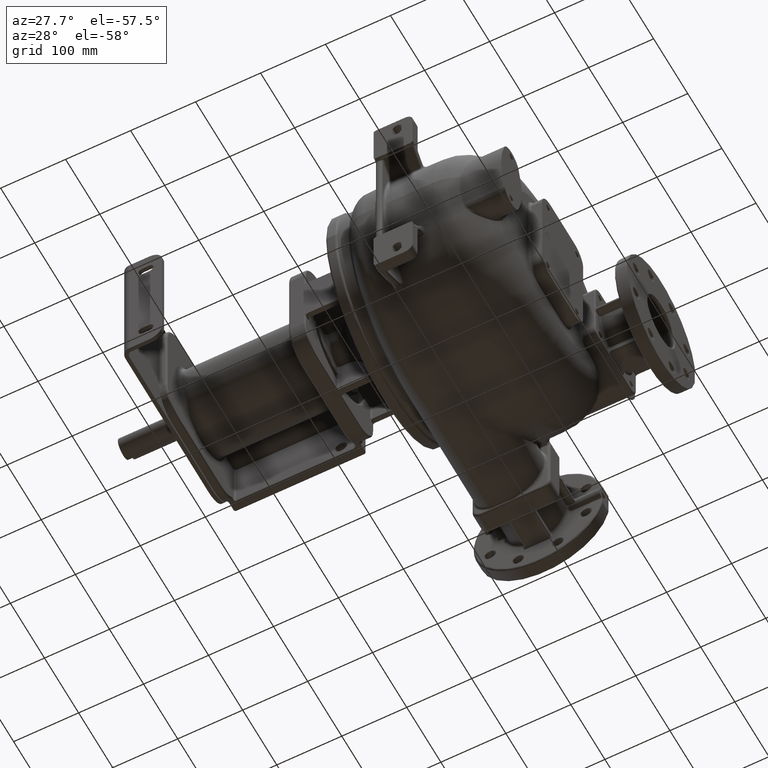
[diagram: clean part render]
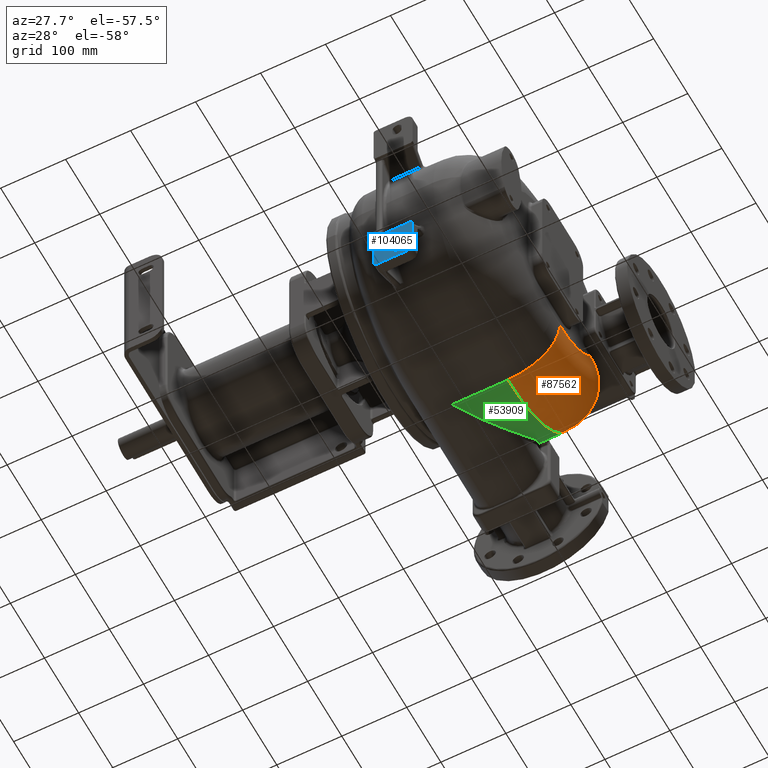
[diagram: same view with three faces highlighted in distinct colors, each labeled with its STEP entity id]
A machine part, auxiliary view with three faces highlighted in distinct colors.
Their STEP definitions:

[orange] entity #87562 — the highlighted toroidal blend (fillet) surface has major radius 109 mm and minor (blend) radius 80 mm.
#5505=CARTESIAN_POINT('',(5.E1,2.3E2,-1.4E1));
#5506=DIRECTION('',(1.E0,0.E0,0.E0));
#5507=DIRECTION('',(0.E0,0.E0,-1.E0));
#5508=AXIS2_PLACEMENT_3D('',#5505,#5506,#5507);
#6310=CARTESIAN_POINT('',(1.040329529372E2,3.857771678593E2,-7.689562539190E1));
#6311=CARTESIAN_POINT('',(1.035905255730E2,3.861629097738E2,-7.702252964153E1));
#6312=CARTESIAN_POINT('',(1.026966032979E2,3.869251180706E2,-7.727293137888E1));
#6313=CARTESIAN_POINT('',(1.013290008168E2,3.880395520785E2,-7.763815701372E1));
#6314=CARTESIAN_POINT('',(9.993548480350E1,3.891246390790E2,-7.799301578857E1));
#6315=CARTESIAN_POINT('',(9.851674581328E1,3.901797362281E2,-7.833743663755E1));
#6316=CARTESIAN_POINT('',(9.707352182037E1,3.912042727772E2,-7.867136608777E1));
#6317=CARTESIAN_POINT('',(9.560655704737E1,3.921977128574E2,-7.899466526427E1));
#6318=CARTESIAN_POINT('',(9.411661777709E1,3.931597080435E2,-7.930677358245E1));
#6319=CARTESIAN_POINT('',(9.260447693449E1,3.940896586359E2,-7.960781280416E1));
#6320=CARTESIAN_POINT('',(9.107095641192E1,3.949870284471E2,-7.989773840253E1));
#6321=CARTESIAN_POINT('',(8.951688922757E1,3.958512970011E2,-8.017652988257E1));
#6322=CARTESIAN_POINT('',(8.794311517104E1,3.966819836941E2,-8.044413888042E1));
#6323=CARTESIAN_POINT('',(8.635034532885E1,3.974787022803E2,-8.070053295662E1));
#6324=CARTESIAN_POINT('',(8.473930829245E1,3.982410942280E2,-8.094561831221E1));
#6325=CARTESIAN_POINT('',(8.311072387359E1,3.989689572797E2,-8.117895281068E1));
#6326=CARTESIAN_POINT('',(8.146547745084E1,3.996617998899E2,-8.140066000956E1));
#6327=CARTESIAN_POINT('',(7.980451064137E1,4.003191950396E2,-8.161072039727E1));
#6328=CARTESIAN_POINT('',(7.812879717809E1,4.009407345350E2,-8.180912549348E1));
#6329=CARTESIAN_POINT('',(7.643918740886E1,4.015261007076E2,-8.199585378349E1));
#6330=CARTESIAN_POINT('',(7.473637370088E1,4.020750535274E2,-8.217088093636E1));
#6331=CARTESIAN_POINT('',(7.302107089715E1,4.025873670927E2,-8.233414018710E1));
#6332=CARTESIAN_POINT('',(7.129402880647E1,4.030628955526E2,-8.248534871918E1));
#6333=CARTESIAN_POINT('',(6.955635214939E1,4.035012688608E2,-8.262457522326E1));
#6334=CARTESIAN_POINT('',(6.780911822094E1,4.039022038004E2,-8.275180703913E1));
#6335=CARTESIAN_POINT('',(6.605345997964E1,4.042654482518E2,-8.286703322837E1));
#6336=CARTESIAN_POINT('',(6.429012023091E1,4.045908733383E2,-8.297024425396E1));
#6337=CARTESIAN_POINT('',(6.251979008120E1,4.048783705678E2,-8.306141284242E1));
#6338=CARTESIAN_POINT('',(6.074314526226E1,4.051278534395E2,-8.314046579985E1));
#6339=CARTESIAN_POINT('',(5.896099944091E1,4.053392479822E2,-8.320725475499E1));
#6340=CARTESIAN_POINT('',(5.717428080935E1,4.055123736474E2,-8.326190977360E1));
#6341=CARTESIAN_POINT('',(5.538389974918E1,4.056471154517E2,-8.330446709496E1));
#6342=CARTESIAN_POINT('',(5.359077787846E1,4.057433821578E2,-8.333493904919E1));
#6343=CARTESIAN_POINT('',(5.179583513734E1,4.058011495999E2,-8.335330030698E1));
#6344=CARTESIAN_POINT('',(5.059861126164E1,4.058139376033E2,-8.335741470906E1));
#6345=CARTESIAN_POINT('',(4.999999999929E1,4.058139469125E2,-8.335743218243E1));
#25752=CARTESIAN_POINT('',(1.040329529372E2,3.857771678593E2,
-7.689562539190E1));
#25753=CARTESIAN_POINT('',(1.044497564811E2,3.853636401138E2,
-7.690018190896E1));
#25754=CARTESIAN_POINT('',(1.052757509847E2,3.845261068172E2,
-7.690951338989E1));
#25755=CARTESIAN_POINT('',(1.064910324612E2,3.832385447943E2,
-7.692396759785E1));
#25756=CARTESIAN_POINT('',(1.076821024555E2,3.819201210959E2,
-7.693898228250E1));
#25757=CARTESIAN_POINT('',(1.088483441914E2,3.805711152785E2,
-7.695454911435E1));
#25758=CARTESIAN_POINT('',(1.099891565011E2,3.791918680806E2,
-7.697070617126E1));
#25759=CARTESIAN_POINT('',(1.111040331009E2,3.777826036032E2,
-7.698746576296E1));
#25760=CARTESIAN_POINT('',(1.121924813618E2,3.763435285453E2,
-7.700483893523E1));
#25761=CARTESIAN_POINT('',(1.132539887308E2,3.748748643930E2,
-7.702284401424E1));
#25762=CARTESIAN_POINT('',(1.142880238298E2,3.733768536380E2,
-7.704150805566E1));
#25763=CARTESIAN_POINT('',(1.152940971209E2,3.718496789748E2,
-7.706084830235E1));
#25764=CARTESIAN_POINT('',(1.162717189407E2,3.702935106711E2,-7.708088119E1));
#25765=CARTESIAN_POINT('',(1.172203813697E2,3.687085313729E2,
-7.710163158275E1));
#25766=CARTESIAN_POINT('',(1.181395535276E2,3.670949511448E2,
-7.712313443207E1));
#25767=CARTESIAN_POINT('',(1.190287603280E2,3.654528768229E2,
-7.714541390622E1));
#25768=CARTESIAN_POINT('',(1.198875241580E2,3.637823932881E2,
-7.716849188171E1));
#25769=CARTESIAN_POINT('',(1.207153426772E2,3.620836007957E2,
-7.719239894183E1));
#25770=CARTESIAN_POINT('',(1.215116834853E2,3.603566403084E2,
-7.721717472355E1));
#25771=CARTESIAN_POINT('',(1.222761233418E2,3.586013869958E2,
-7.724285105482E1));
#25772=CARTESIAN_POINT('',(1.230082177711E2,3.568176824953E2,
-7.726946161117E1));
#25773=CARTESIAN_POINT('',(1.237074794376E2,3.550053914499E2,
-7.729704859942E1));
#25774=CARTESIAN_POINT('',(1.243733829103E2,3.531643980811E2,
-7.732566230956E1));
#25775=CARTESIAN_POINT('',(1.250053240716E2,3.512947653006E2,
-7.735533695354E1));
#25776=CARTESIAN_POINT('',(1.256027069117E2,3.493964974026E2,
-7.738611431104E1));
#25777=CARTESIAN_POINT('',(1.261648406059E2,3.474699156658E2,
-7.741803988101E1));
#25778=CARTESIAN_POINT('',(1.266914067986E2,3.455140180195E2,
-7.745118185444E1));
#25779=CARTESIAN_POINT('',(1.271822842012E2,3.435265180411E2,
-7.748562532301E1));
#25780=CARTESIAN_POINT('',(1.276371172224E2,3.415052858612E2,
-7.752146547419E1));
#25781=CARTESIAN_POINT('',(1.280552649102E2,3.394485641274E2,
-7.755880392102E1));
#25782=CARTESIAN_POINT('',(1.284348661626E2,3.373609240115E2,
-7.759761727956E1));
#25783=CARTESIAN_POINT('',(1.287745129862E2,3.352468906401E2,
-7.763787939658E1));
#25784=CARTESIAN_POINT('',(1.290732164752E2,3.331105052080E2,
-7.767957443288E1));
#25785=CARTESIAN_POINT('',(1.293298460166E2,3.309601446619E2,
-7.772259006534E1));
#25786=CARTESIAN_POINT('',(1.295438252211E2,3.288058460263E2,
-7.776675770022E1));
#25787=CARTESIAN_POINT('',(1.297153525803E2,3.266575668525E2,
-7.781189350592E1));
#25788=CARTESIAN_POINT('',(1.298454336841E2,3.245243597070E2,
-7.785781662845E1));
#25789=CARTESIAN_POINT('',(1.299359389798E2,3.224074162517E2,
-7.790449220049E1));
#25790=CARTESIAN_POINT('',(1.299887067979E2,3.203084235103E2,
-7.795187214850E1));
#25791=CARTESIAN_POINT('',(1.299999994033E2,3.189223471477E2,
-7.798388854589E1));
#25792=CARTESIAN_POINT('',(1.3E2,3.182326470208E2,-7.8E1));
#25794=CARTESIAN_POINT('',(5.E1,2.3E2,-1.23E2));
#25795=DIRECTION('',(0.E0,1.E0,0.E0));
#25796=DIRECTION('',(1.E0,0.E0,0.E0));
#25797=AXIS2_PLACEMENT_3D('',#25794,#25795,#25796);
#25808=CARTESIAN_POINT('',(1.3E2,2.3E2,-1.4E1));
#25809=DIRECTION('',(1.E0,0.E0,0.E0));
#25810=DIRECTION('',(0.E0,0.E0,-1.E0));
#25811=AXIS2_PLACEMENT_3D('',#25808,#25809,#25810);
#43931=CARTESIAN_POINT('',(1.3E2,2.3E2,-1.23E2));
#43933=VERTEX_POINT('',#43931);
#43935=CARTESIAN_POINT('',(5.E1,2.3E2,-2.03E2));
#43937=VERTEX_POINT('',#43935);
#43950=CARTESIAN_POINT('',(5.E1,4.058139534884E2,-8.335743477659E1));
#43951=VERTEX_POINT('',#43950);
#44004=CARTESIAN_POINT('',(1.3E2,3.182326470208E2,-7.8E1));
#44006=VERTEX_POINT('',#44004);
#44025=VERTEX_POINT('',#25752);
#87548=CARTESIAN_POINT('',(5.E1,2.3E2,-1.4E1));
#87549=DIRECTION('',(1.E0,0.E0,0.E0));
#87550=DIRECTION('',(0.E0,-4.013646275206E-3,-9.999919452893E-1));
#87551=AXIS2_PLACEMENT_3D('',#87548,#87549,#87550);
#87552=TOROIDAL_SURFACE('',#87551,1.09E2,8.E1);
#87553=ORIENTED_EDGE('',*,*,#87542,.F.);
#87554=ORIENTED_EDGE('',*,*,#54585,.T.);
#87555=ORIENTED_EDGE('',*,*,#53900,.F.);
#87557=ORIENTED_EDGE('',*,*,#87556,.F.);
#87559=ORIENTED_EDGE('',*,*,#87558,.T.);
#87560=EDGE_LOOP('',(#87553,#87554,#87555,#87557,#87559));
#87561=FACE_OUTER_BOUND('',#87560,.F.);
#87562=ADVANCED_FACE('',(#87561),#87552,.T.);
#5509=CIRCLE('',#5508,1.89E2);
#6346=B_SPLINE_CURVE_WITH_KNOTS('',3,(#6310,#6311,#6312,#6313,#6314,#6315,#6316,
#6317,#6318,#6319,#6320,#6321,#6322,#6323,#6324,#6325,#6326,#6327,#6328,#6329,
#6330,#6331,#6332,#6333,#6334,#6335,#6336,#6337,#6338,#6339,#6340,#6341,#6342,
#6343,#6344,#6345),.UNSPECIFIED.,.F.,.F.,(4,1,1,1,1,1,1,1,1,1,1,1,1,1,1,1,1,1,1,
1,1,1,1,1,1,1,1,1,1,1,1,1,1,4),(0.E0,3.030303030303E-2,6.060606060606E-2,
9.090909090909E-2,1.212121212121E-1,1.515151515152E-1,1.818181818182E-1,
2.121212121212E-1,2.424242424242E-1,2.727272727273E-1,3.030303030303E-1,
3.333333333333E-1,3.636363636364E-1,3.939393939394E-1,4.242424242424E-1,
4.545454545455E-1,4.848484848485E-1,5.151515151515E-1,5.454545454545E-1,
5.757575757576E-1,6.060606060606E-1,6.363636363636E-1,6.666666666667E-1,
6.969696969697E-1,7.272727272727E-1,7.575757575758E-1,7.878787878788E-1,
8.181818181818E-1,8.484848484848E-1,8.787878787879E-1,9.090909090909E-1,
9.393939393939E-1,9.696969696970E-1,1.E0),.UNSPECIFIED.);
#25793=B_SPLINE_CURVE_WITH_KNOTS('',3,(#25752,#25753,#25754,#25755,#25756,
#25757,#25758,#25759,#25760,#25761,#25762,#25763,#25764,#25765,#25766,#25767,
#25768,#25769,#25770,#25771,#25772,#25773,#25774,#25775,#25776,#25777,#25778,
#25779,#25780,#25781,#25782,#25783,#25784,#25785,#25786,#25787,#25788,#25789,
#25790,#25791,#25792),.UNSPECIFIED.,.F.,.F.,(4,1,1,1,1,1,1,1,1,1,1,1,1,1,1,1,1,
1,1,1,1,1,1,1,1,1,1,1,1,1,1,1,1,1,1,1,1,1,4),(0.E0,2.631578947368E-2,
5.263157894737E-2,7.894736842105E-2,1.052631578947E-1,1.315789473684E-1,
1.578947368421E-1,1.842105263158E-1,2.105263157895E-1,2.368421052632E-1,
2.631578947368E-1,2.894736842105E-1,3.157894736842E-1,3.421052631579E-1,
3.684210526316E-1,3.947368421053E-1,4.210526315789E-1,4.473684210526E-1,
4.736842105263E-1,5.E-1,5.263157894737E-1,5.526315789474E-1,5.789473684211E-1,
6.052631578947E-1,6.315789473684E-1,6.578947368421E-1,6.842105263158E-1,
7.105263157895E-1,7.368421052632E-1,7.631578947368E-1,7.894736842105E-1,
8.157894736842E-1,8.421052631579E-1,8.684210526316E-1,8.947368421053E-1,
9.210526315789E-1,9.473684210526E-1,9.736842105263E-1,1.E0),.UNSPECIFIED.);
#25798=CIRCLE('',#25797,8.E1);
#25812=CIRCLE('',#25811,1.09E2);
#53900=EDGE_CURVE('',#43937,#43951,#5509,.T.);
#54585=EDGE_CURVE('',#44025,#43951,#6346,.T.);
#87542=EDGE_CURVE('',#44025,#44006,#25793,.T.);
#87556=EDGE_CURVE('',#43933,#43937,#25798,.T.);
#87558=EDGE_CURVE('',#43933,#44006,#25812,.T.);

[blue] entity #104065 — the highlighted planar face has unit normal (0, 1, 0).
#38571=DIRECTION('',(0.E0,0.E0,-1.E0));
#38572=VECTOR('',#38571,5.4E1);
#38573=CARTESIAN_POINT('',(2.4E1,0.E0,-1.04E2));
#38574=LINE('',#38573,#38572);
#38606=DIRECTION('',(9.999999999999E-1,-2.362841495658E-7,-4.448935195100E-7));
#38607=VECTOR('',#38606,4.999819207330E1);
#38608=CARTESIAN_POINT('',(-2.999819207329E1,1.181378029387E-5,
-9.999997775613E1));
#38609=LINE('',#38608,#38607);
#38683=DIRECTION('',(-9.999999999208E-1,-5.901555351495E-6,-1.111189107711E-5));
#38684=VECTOR('',#38683,2.001807926865E0);
#38685=CARTESIAN_POINT('',(-2.999819207329E1,1.181378029387E-5,
-9.999997775613E1));
#38686=LINE('',#38685,#38684);
#38697=CARTESIAN_POINT('',(-3.2E1,0.E0,-1.04E2));
#38698=DIRECTION('',(0.E0,1.E0,0.E0));
#38699=DIRECTION('',(-1.E0,0.E0,0.E0));
#38700=AXIS2_PLACEMENT_3D('',#38697,#38698,#38699);
#38707=DIRECTION('',(0.E0,0.E0,1.E0));
#38708=VECTOR('',#38707,6.2E1);
#38709=CARTESIAN_POINT('',(-3.6E1,0.E0,-1.66E2));
#38710=LINE('',#38709,#38708);
#38733=CARTESIAN_POINT('',(-3.2E1,0.E0,-1.66E2));
#38734=DIRECTION('',(0.E0,-1.E0,0.E0));
#38735=DIRECTION('',(-1.E0,0.E0,0.E0));
#38736=AXIS2_PLACEMENT_3D('',#38733,#38734,#38735);
#38743=DIRECTION('',(-1.E0,0.E0,0.E0));
#38744=VECTOR('',#38743,4.4E1);
#38745=CARTESIAN_POINT('',(1.2E1,0.E0,-1.7E2));
#38746=LINE('',#38745,#38744);
#38759=CARTESIAN_POINT('',(1.2E1,0.E0,-1.58E2));
#38760=DIRECTION('',(0.E0,1.E0,0.E0));
#38761=DIRECTION('',(1.E0,0.E0,0.E0));
#38762=AXIS2_PLACEMENT_3D('',#38759,#38760,#38761);
#38982=CARTESIAN_POINT('',(0.E0,0.E0,-1.45E2));
#38983=DIRECTION('',(0.E0,-1.E0,0.E0));
#38984=DIRECTION('',(1.E0,0.E0,0.E0));
#38985=AXIS2_PLACEMENT_3D('',#38982,#38983,#38984);
#38991=DIRECTION('',(0.E0,0.E0,1.E0));
#38992=VECTOR('',#38991,7.5E0);
#38993=CARTESIAN_POINT('',(7.E0,0.E0,-1.525E2));
#38994=LINE('',#38993,#38992);
#38999=CARTESIAN_POINT('',(0.E0,0.E0,-1.525E2));
#39000=DIRECTION('',(0.E0,-1.E0,0.E0));
#39001=DIRECTION('',(-1.E0,0.E0,0.E0));
#39002=AXIS2_PLACEMENT_3D('',#38999,#39000,#39001);
#39008=DIRECTION('',(0.E0,0.E0,-1.E0));
#39009=VECTOR('',#39008,7.5E0);
#39010=CARTESIAN_POINT('',(-7.E0,0.E0,-1.45E2));
#39011=LINE('',#39010,#39009);
#39606=CARTESIAN_POINT('',(2.E1,0.E0,-1.04E2));
#39607=DIRECTION('',(0.E0,-1.E0,0.E0));
#39608=DIRECTION('',(1.E0,0.E0,0.E0));
#39609=AXIS2_PLACEMENT_3D('',#39606,#39607,#39608);
#45241=CARTESIAN_POINT('',(-2.999819207329E1,1.181378029387E-5,
-9.999997775613E1));
#45242=CARTESIAN_POINT('',(2.E1,0.E0,-1.E2));
#45243=VERTEX_POINT('',#45241);
#45244=VERTEX_POINT('',#45242);
#45249=CARTESIAN_POINT('',(2.4E1,0.E0,-1.04E2));
#45250=CARTESIAN_POINT('',(2.4E1,0.E0,-1.58E2));
#45251=VERTEX_POINT('',#45249);
#45252=VERTEX_POINT('',#45250);
#45253=CARTESIAN_POINT('',(1.2E1,0.E0,-1.7E2));
#45254=VERTEX_POINT('',#45253);
#45255=CARTESIAN_POINT('',(-3.2E1,0.E0,-1.7E2));
#45256=VERTEX_POINT('',#45255);
#45257=CARTESIAN_POINT('',(-3.6E1,0.E0,-1.66E2));
#45258=CARTESIAN_POINT('',(-3.6E1,0.E0,-1.04E2));
#45259=VERTEX_POINT('',#45257);
#45260=VERTEX_POINT('',#45258);
#45273=CARTESIAN_POINT('',(-3.2E1,1.041434631946E-14,-1.E2));
#45274=VERTEX_POINT('',#45273);
#45277=CARTESIAN_POINT('',(7.E0,0.E0,-1.45E2));
#45278=CARTESIAN_POINT('',(-7.E0,0.E0,-1.45E2));
#45279=VERTEX_POINT('',#45277);
#45280=VERTEX_POINT('',#45278);
#45281=CARTESIAN_POINT('',(-7.E0,0.E0,-1.525E2));
#45282=VERTEX_POINT('',#45281);
#45283=CARTESIAN_POINT('',(7.E0,0.E0,-1.525E2));
#45284=VERTEX_POINT('',#45283);
#104031=CARTESIAN_POINT('',(-1.1E2,0.E0,2.5E2));
#104032=DIRECTION('',(0.E0,1.E0,0.E0));
#104033=DIRECTION('',(1.E0,0.E0,0.E0));
#104034=AXIS2_PLACEMENT_3D('',#104031,#104032,#104033);
#104035=PLANE('',#104034);
#104037=ORIENTED_EDGE('',*,*,#104036,.T.);
#104039=ORIENTED_EDGE('',*,*,#104038,.F.);
#104040=ORIENTED_EDGE('',*,*,#104012,.T.);
#104042=ORIENTED_EDGE('',*,*,#104041,.T.);
#104044=ORIENTED_EDGE('',*,*,#104043,.T.);
#104046=ORIENTED_EDGE('',*,*,#104045,.F.);
#104048=ORIENTED_EDGE('',*,*,#104047,.T.);
#104050=ORIENTED_EDGE('',*,*,#104049,.T.);
#104052=ORIENTED_EDGE('',*,*,#104051,.F.);
#104053=EDGE_LOOP('',(#104037,#104039,#104040,#104042,#104044,#104046,#104048,
#104050,#104052));
#104054=FACE_OUTER_BOUND('',#104053,.F.);
#104056=ORIENTED_EDGE('',*,*,#104055,.T.);
#104058=ORIENTED_EDGE('',*,*,#104057,.T.);
#104060=ORIENTED_EDGE('',*,*,#104059,.T.);
#104062=ORIENTED_EDGE('',*,*,#104061,.T.);
#104063=EDGE_LOOP('',(#104056,#104058,#104060,#104062));
#104064=FACE_BOUND('',#104063,.F.);
#104065=ADVANCED_FACE('',(#104054,#104064),#104035,.F.);
#38701=CIRCLE('',#38700,4.E0);
#38737=CIRCLE('',#38736,4.E0);
#38763=CIRCLE('',#38762,1.2E1);
#38986=CIRCLE('',#38985,7.E0);
#39003=CIRCLE('',#39002,7.E0);
#39610=CIRCLE('',#39609,4.E0);
#104012=EDGE_CURVE('',#45251,#45252,#38574,.T.);
#104036=EDGE_CURVE('',#45243,#45244,#38609,.T.);
#104038=EDGE_CURVE('',#45251,#45244,#39610,.T.);
#104041=EDGE_CURVE('',#45252,#45254,#38763,.T.);
#104043=EDGE_CURVE('',#45254,#45256,#38746,.T.);
#104045=EDGE_CURVE('',#45259,#45256,#38737,.T.);
#104047=EDGE_CURVE('',#45259,#45260,#38710,.T.);
#104049=EDGE_CURVE('',#45260,#45274,#38701,.T.);
#104051=EDGE_CURVE('',#45243,#45274,#38686,.T.);
#104055=EDGE_CURVE('',#45279,#45280,#38986,.T.);
#104057=EDGE_CURVE('',#45280,#45282,#39011,.T.);
#104059=EDGE_CURVE('',#45282,#45284,#39003,.T.);
#104061=EDGE_CURVE('',#45284,#45279,#38994,.T.);

[green] entity #53909 — the highlighted cylindrical surface (partial cylindrical patch) has radius 189 mm, axis along (1, 0, 0).
#5310=CARTESIAN_POINT('',(2.463358836089E1,4.023523316063E2,-9.156077481490E1));
#5311=CARTESIAN_POINT('',(2.451900613920E1,4.024254354048E2,-9.139832762232E1));
#5312=CARTESIAN_POINT('',(2.428484579216E1,4.025692823296E2,-9.107744875619E1));
#5313=CARTESIAN_POINT('',(2.391862181820E1,4.027782351233E2,-9.060787916290E1));
#5314=CARTESIAN_POINT('',(2.353810834694E1,4.029801866935E2,-9.015074426394E1));
#5315=CARTESIAN_POINT('',(2.314379834069E1,4.031750846634E2,-8.970644697841E1));
#5316=CARTESIAN_POINT('',(2.273622281356E1,4.033628533588E2,-8.927544323670E1));
#5317=CARTESIAN_POINT('',(2.231588956591E1,4.035434287656E2,-8.885816497368E1));
#5318=CARTESIAN_POINT('',(2.188329261444E1,4.037167699719E2,-8.845499117279E1));
#5319=CARTESIAN_POINT('',(2.143884139083E1,4.038829333905E2,-8.806607082641E1));
#5320=CARTESIAN_POINT('',(2.098291035148E1,4.040419616646E2,-8.769157735303E1));
#5321=CARTESIAN_POINT('',(2.051586720505E1,4.041938853290E2,-8.733170562711E1));
#5322=CARTESIAN_POINT('',(2.003813707458E1,4.043387064167E2,-8.698671142521E1));
#5323=CARTESIAN_POINT('',(1.955009276688E1,4.044764290214E2,-8.665683939964E1));
#5324=CARTESIAN_POINT('',(1.905218926008E1,4.046070539119E2,-8.634233513736E1));
#5325=CARTESIAN_POINT('',(1.854502178620E1,4.047305771978E2,-8.604344799600E1));
#5326=CARTESIAN_POINT('',(1.802915090281E1,4.048469931862E2,-8.576042372612E1));
#5327=CARTESIAN_POINT('',(1.750510684136E1,4.049563003937E2,-8.549348916525E1));
#5328=CARTESIAN_POINT('',(1.697335825507E1,4.050585046343E2,-8.524284365515E1));
#5329=CARTESIAN_POINT('',(1.643435287860E1,4.051536023007E2,-8.500869929382E1));
#5330=CARTESIAN_POINT('',(1.588857979121E1,4.052415948108E2,-8.479124504763E1));
#5331=CARTESIAN_POINT('',(1.533665212630E1,4.053224970868E2,-8.459062472602E1));
#5332=CARTESIAN_POINT('',(1.477915526412E1,4.053963178493E2,-8.440698496774E1));
#5333=CARTESIAN_POINT('',(1.421666365367E1,4.054630661348E2,-8.424045879349E1));
#5334=CARTESIAN_POINT('',(1.364948497898E1,4.055227721676E2,-8.409111274164E1));
#5335=CARTESIAN_POINT('',(1.307793309436E1,4.055754496804E2,-8.395904037815E1));
#5336=CARTESIAN_POINT('',(1.250225373172E1,4.056210936187E2,-8.384436834433E1));
#5337=CARTESIAN_POINT('',(1.192307562814E1,4.056597107231E2,-8.374717933704E1));
#5338=CARTESIAN_POINT('',(1.134113437779E1,4.056913092194E2,-8.366753751220E1));
#5339=CARTESIAN_POINT('',(1.075713025052E1,4.057158927306E2,-8.360550341786E1));
#5340=CARTESIAN_POINT('',(1.017179420538E1,4.057334622808E2,-8.356112944753E1));
#5341=CARTESIAN_POINT('',(9.585759500351E0,4.057440149052E2,-8.353446066435E1));
#5342=CARTESIAN_POINT('',(9.195258106388E0,4.057463697341E2,-8.352851038200E1));
#5343=CARTESIAN_POINT('',(8.999999997960E0,4.057463742101E2,-8.352849740931E1));
#5345=CARTESIAN_POINT('',(2.601958005698E1,3.971923204193E2,-1.021347150265E2));
#5346=CARTESIAN_POINT('',(2.606886979403E1,3.972474741209E2,-1.020300895109E2));
#5347=CARTESIAN_POINT('',(2.616364086479E1,3.973589197265E2,-1.018181982147E2));
#5348=CARTESIAN_POINT('',(2.629428795808E1,3.975296341702E2,-1.014921019748E2));
#5349=CARTESIAN_POINT('',(2.641289725865E1,3.977034943397E2,-1.011583969630E2));
#5350=CARTESIAN_POINT('',(2.651907424949E1,3.978802267862E2,-1.008175070949E2));
#5351=CARTESIAN_POINT('',(2.661240292575E1,3.980595064730E2,-1.004699608806E2));
#5352=CARTESIAN_POINT('',(2.669249670142E1,3.982410157860E2,-1.001162823018E2));
#5353=CARTESIAN_POINT('',(2.675895592893E1,3.984243918267E2,-9.975709403846E1));
#5354=CARTESIAN_POINT('',(2.681151033562E1,3.986094072922E2,-9.939276402112E1));
#5355=CARTESIAN_POINT('',(2.685000138385E1,3.987960029838E2,-9.902333325417E1));
#5356=CARTESIAN_POINT('',(2.687419959636E1,3.989840963665E2,-9.864888892945E1));
#5357=CARTESIAN_POINT('',(2.688383396553E1,3.991734906072E2,-9.826974883513E1));
#5358=CARTESIAN_POINT('',(2.687863360788E1,3.993638827915E2,-9.788645178013E1));
#5359=CARTESIAN_POINT('',(2.685834303846E1,3.995549683727E2,-9.749955227325E1));
#5360=CARTESIAN_POINT('',(2.682276731942E1,3.997465195389E2,-9.710946074709E1));
#5361=CARTESIAN_POINT('',(2.677172561874E1,3.999383384676E2,-9.671653517363E1));
#5362=CARTESIAN_POINT('',(2.670503048217E1,4.001302030062E2,-9.632119208901E1));
#5363=CARTESIAN_POINT('',(2.662250345162E1,4.003218711561E2,-9.592389914973E1));
#5364=CARTESIAN_POINT('',(2.652396754213E1,4.005130862999E2,-9.552516607631E1));
#5365=CARTESIAN_POINT('',(2.640928287892E1,4.007036615723E2,-9.512536825780E1));
#5366=CARTESIAN_POINT('',(2.627830648465E1,4.008934164132E2,-9.472487649031E1));
#5367=CARTESIAN_POINT('',(2.613091633354E1,4.010821276056E2,-9.432416148695E1));
#5368=CARTESIAN_POINT('',(2.596699565601E1,4.012695590551E2,-9.392373316072E1));
#5369=CARTESIAN_POINT('',(2.578649114582E1,4.014554604069E2,-9.352414457379E1));
#5370=CARTESIAN_POINT('',(2.558940076311E1,4.016395712640E2,-9.312598409463E1));
#5371=CARTESIAN_POINT('',(2.537574041129E1,4.018216297260E2,-9.272985738030E1));
#5372=CARTESIAN_POINT('',(2.514557682802E1,4.020013626975E2,-9.233640962485E1));
#5373=CARTESIAN_POINT('',(2.489900441110E1,4.021785377167E2,-9.194620993399E1));
#5374=CARTESIAN_POINT('',(2.472388872868E1,4.022947140914E2,-9.168881062468E1));
#5375=CARTESIAN_POINT('',(2.463358836089E1,4.023523316063E2,-9.156077481490E1));
#5377=CARTESIAN_POINT('',(1.999999504987E1,3.945181350074E2,-1.070310875658E2));
#5378=CARTESIAN_POINT('',(2.006028890176E1,3.945181439721E2,-1.070310675058E2));
#5379=CARTESIAN_POINT('',(2.018156428884E1,3.945194550523E2,-1.070287551815E2));
#5380=CARTESIAN_POINT('',(2.036568917776E1,3.945255470612E2,-1.070179786692E2));
#5381=CARTESIAN_POINT('',(2.055175908884E1,3.945359666616E2,-1.069995479349E2));
#5382=CARTESIAN_POINT('',(2.073956444080E1,3.945508738719E2,-1.069731698044E2));
#5383=CARTESIAN_POINT('',(2.092886294136E1,3.945703719937E2,-1.069386534953E2));
#5384=CARTESIAN_POINT('',(2.111944710706E1,3.945944839123E2,-1.068959462279E2));
#5385=CARTESIAN_POINT('',(2.131119751319E1,3.946233243717E2,-1.068448297745E2));
#5386=CARTESIAN_POINT('',(2.150389186921E1,3.946570076338E2,-1.067850830552E2));
#5387=CARTESIAN_POINT('',(2.169758978175E1,3.946956972767E2,-1.067163936717E2));
#5388=CARTESIAN_POINT('',(2.189333805756E1,3.947398145910E2,-1.066379865323E2));
#5389=CARTESIAN_POINT('',(2.209203047330E1,3.947898959154E2,-1.065488742472E2));
#5390=CARTESIAN_POINT('',(2.229364696331E1,3.948462098982E2,-1.064485370434E2));
#5391=CARTESIAN_POINT('',(2.249778311702E1,3.949089206229E2,-1.063366339345E2));
#5392=CARTESIAN_POINT('',(2.270412792842E1,3.949782653682E2,-1.062126854763E2));
#5393=CARTESIAN_POINT('',(2.291246597998E1,3.950546170943E2,-1.060759596307E2));
#5394=CARTESIAN_POINT('',(2.312248992310E1,3.951383860466E2,-1.059256453786E2));
#5395=CARTESIAN_POINT('',(2.333560166939E1,3.952304348197E2,-1.057601034468E2));
#5396=CARTESIAN_POINT('',(2.355287139702E1,3.953318156716E2,-1.055773263419E2));
#5397=CARTESIAN_POINT('',(2.377298092494E1,3.954426608594E2,-1.053769388872E2));
#5398=CARTESIAN_POINT('',(2.399411164552E1,3.955628701559E2,-1.051589733209E2));
#5399=CARTESIAN_POINT('',(2.421661707267E1,3.956931063791E2,-1.049220595533E2));
#5400=CARTESIAN_POINT('',(2.444068482447E1,3.958341440643E2,-1.046645895242E2));
#5401=CARTESIAN_POINT('',(2.466602635940E1,3.959867317700E2,-1.043849627395E2));
#5402=CARTESIAN_POINT('',(2.489216687904E1,3.961516052578E2,-1.040815579309E2));
#5403=CARTESIAN_POINT('',(2.511902085586E1,3.963296475204E2,-1.037524307688E2));
#5404=CARTESIAN_POINT('',(2.534609236453E1,3.965217073152E2,-1.033956382744E2));
#5405=CARTESIAN_POINT('',(2.557256319985E1,3.967285786313E2,-1.030092696169E2));
#5406=CARTESIAN_POINT('',(2.579760914391E1,3.969509594942E2,-1.025915220114E2));
#5407=CARTESIAN_POINT('',(2.594606499330E1,3.971100748863E2,-1.022907335674E2));
#5408=CARTESIAN_POINT('',(2.601958005698E1,3.971923204193E2,-1.021347150265E2));
#5410=DIRECTION('',(1.E0,2.088836814115E-8,3.693960324156E-8));
#5411=VECTOR('',#5410,1.399999504984E1);
#5412=CARTESIAN_POINT('',(6.000000000036E0,3.945181347150E2,-1.070310880829E2));
#5413=LINE('',#5412,#5411);
#5414=CARTESIAN_POINT('',(-3.599997426415E1,2.300000447976E2,
-2.029999999970E2));
#5415=CARTESIAN_POINT('',(-3.531985993402E1,2.312149486518E2,
-2.029999613669E2));
#5416=CARTESIAN_POINT('',(-3.396038786922E1,2.336434265843E2,
-2.029765968646E2));
#5417=CARTESIAN_POINT('',(-3.192407333775E1,2.372833556956E2,
-2.028712958338E2));
#5418=CARTESIAN_POINT('',(-2.989459122789E1,2.409158335099E2,
-2.026961741310E2));
#5419=CARTESIAN_POINT('',(-2.787500826186E1,2.445376994347E2,
-2.024516857256E2));
#5420=CARTESIAN_POINT('',(-2.586857377764E1,2.481453954200E2,
-2.021385214450E2));
#5421=CARTESIAN_POINT('',(-2.387842738285E1,2.517354869338E2,
-2.017575515488E2));
#5422=CARTESIAN_POINT('',(-2.190772558914E1,2.553046295642E2,
-2.013098267275E2));
#5423=CARTESIAN_POINT('',(-1.995954147334E1,2.588494839829E2,
-2.007965837157E2));
#5424=CARTESIAN_POINT('',(-1.803684357587E1,2.623667740978E2,
-2.002192365785E2));
#5425=CARTESIAN_POINT('',(-1.614251944602E1,2.658531469196E2,
-1.995794032862E2));
#5426=CARTESIAN_POINT('',(-1.427921619636E1,2.693057846196E2,
-1.988787868651E2));
#5427=CARTESIAN_POINT('',(-1.244937554682E1,2.727222306859E2,
-1.981191616696E2));
#5428=CARTESIAN_POINT('',(-1.065533021633E1,2.760999833703E2,
-1.973024463006E2));
#5429=CARTESIAN_POINT('',(-8.899255383161E0,2.794365670333E2,
-1.964306942300E2));
#5430=CARTESIAN_POINT('',(-7.183215891665E0,2.827296344842E2,
-1.955060663506E2));
#5431=CARTESIAN_POINT('',(-5.509194241279E0,2.859771810713E2,
-1.945307541434E2));
#5432=CARTESIAN_POINT('',(-3.879030915068E0,2.891771336574E2,
-1.935070835137E2));
#5433=CARTESIAN_POINT('',(-2.294517274147E0,2.923271840763E2,
-1.924375882087E2));
#5434=CARTESIAN_POINT('',(-7.571776533599E-1,2.954254003378E2,
-1.913248173538E2));
#5435=CARTESIAN_POINT('',(7.318770190356E-1,2.984709028592E2,
-1.901710306327E2));
#5436=CARTESIAN_POINT('',(2.171667866565E0,3.014627148363E2,-1.889785664827E2));
#5437=CARTESIAN_POINT('',(3.561427316837E0,3.043999274390E2,-1.877497918332E2));
#5438=CARTESIAN_POINT('',(4.900418338488E0,3.072817176337E2,-1.864870889483E2));
#5439=CARTESIAN_POINT('',(6.187895522021E0,3.101073784358E2,-1.851928371949E2));
#5440=CARTESIAN_POINT('',(7.423328763839E0,3.128762440911E2,-1.838694405926E2));
#5441=CARTESIAN_POINT('',(8.606371003121E0,3.155876413039E2,-1.825193551900E2));
#5442=CARTESIAN_POINT('',(9.736738577931E0,3.182413055766E2,-1.811448728624E2));
#5443=CARTESIAN_POINT('',(1.081428414134E1,3.208371494907E2,-1.797482075161E2));
#5444=CARTESIAN_POINT('',(1.183904980196E1,3.233750914784E2,-1.783315797588E2));
#5445=CARTESIAN_POINT('',(1.281119410777E1,3.258551487863E2,-1.768971662409E2));
#5446=CARTESIAN_POINT('',(1.373084882045E1,3.282775992834E2,-1.754469922138E2));
#5447=CARTESIAN_POINT('',(1.459831960554E1,3.306427535547E2,-1.739830501928E2));
#5448=CARTESIAN_POINT('',(1.541407694170E1,3.329509635158E2,-1.725072955087E2));
#5449=CARTESIAN_POINT('',(1.617853228151E1,3.352027332249E2,-1.710215693572E2));
#5450=CARTESIAN_POINT('',(1.689217755543E1,3.373986534023E2,-1.695276296444E2));
#5451=CARTESIAN_POINT('',(1.755567375627E1,3.395393551191E2,-1.680271774192E2));
#5452=CARTESIAN_POINT('',(1.816967304685E1,3.416255393433E2,-1.665218328782E2));
#5453=CARTESIAN_POINT('',(1.873480330551E1,3.436579842764E2,-1.650131237113E2));
#5454=CARTESIAN_POINT('',(1.925184544905E1,3.456375214746E2,-1.635024967271E2));
#5455=CARTESIAN_POINT('',(1.972160357580E1,3.475650163743E2,-1.619913287178E2));
#5456=CARTESIAN_POINT('',(2.014480251519E1,3.494413465103E2,-1.604809419424E2));
#5457=CARTESIAN_POINT('',(2.052228975977E1,3.512674543580E2,-1.589725593979E2));
#5458=CARTESIAN_POINT('',(2.085494323472E1,3.530443110417E2,-1.574673289380E2));
#5459=CARTESIAN_POINT('',(2.114355187022E1,3.547728659658E2,-1.559663656784E2));
#5460=CARTESIAN_POINT('',(2.138898959174E1,3.564541310600E2,-1.544706790431E2));
#5461=CARTESIAN_POINT('',(2.159216676827E1,3.580891514346E2,-1.529811919616E2));
#5462=CARTESIAN_POINT('',(2.175389412937E1,3.596788936508E2,-1.514988437086E2));
#5463=CARTESIAN_POINT('',(2.187502706442E1,3.612243770798E2,-1.500244724169E2));
#5464=CARTESIAN_POINT('',(2.195646319414E1,3.627266815756E2,-1.485587999873E2));
#5465=CARTESIAN_POINT('',(2.199903785105E1,3.641868193384E2,-1.471025548617E2));
#5466=CARTESIAN_POINT('',(2.200355666172E1,3.656057878887E2,-1.456564254797E2));
#5467=CARTESIAN_POINT('',(2.197084380969E1,3.669846346636E2,-1.442209933672E2));
#5468=CARTESIAN_POINT('',(2.190172301620E1,3.683244486578E2,-1.427967346565E2));
#5469=CARTESIAN_POINT('',(2.179696035313E1,3.696261883747E2,-1.413842045599E2));
#5470=CARTESIAN_POINT('',(2.165730273746E1,3.708908365743E2,-1.399838790055E2));
#5471=CARTESIAN_POINT('',(2.148347984087E1,3.721194123881E2,-1.385961371827E2));
#5472=CARTESIAN_POINT('',(2.127618635715E1,3.733129894191E2,-1.372212332817E2));
#5473=CARTESIAN_POINT('',(2.103613411965E1,3.744723037979E2,-1.358597553716E2));
#5474=CARTESIAN_POINT('',(2.076404047370E1,3.755980566597E2,-1.345123015151E2));
#5475=CARTESIAN_POINT('',(2.046054669651E1,3.766912113028E2,-1.331791148590E2));
#5476=CARTESIAN_POINT('',(2.012620868830E1,3.777528371524E2,-1.318602446445E2));
#5477=CARTESIAN_POINT('',(1.976166575311E1,3.787836564245E2,-1.305561139150E2));
#5478=CARTESIAN_POINT('',(1.936759111029E1,3.797842687373E2,-1.292672708979E2));
#5479=CARTESIAN_POINT('',(1.894455651678E1,3.807554743237E2,-1.279939732181E2));
#5480=CARTESIAN_POINT('',(1.849299157142E1,3.816982579346E2,-1.267361831581E2));
#5481=CARTESIAN_POINT('',(1.801330289222E1,3.826135066992E2,-1.254939297654E2));
#5482=CARTESIAN_POINT('',(1.750611320567E1,3.835017429186E2,-1.242676951138E2));
#5483=CARTESIAN_POINT('',(1.697199046501E1,3.843635270107E2,-1.230578875093E2));
#5484=CARTESIAN_POINT('',(1.641138989525E1,3.851995393390E2,-1.218647155148E2));
#5485=CARTESIAN_POINT('',(1.582465639606E1,3.860105178279E2,-1.206882642105E2));
#5486=CARTESIAN_POINT('',(1.521211958829E1,3.867971572066E2,-1.195286367314E2));
#5487=CARTESIAN_POINT('',(1.457426394594E1,3.875600242366E2,-1.183860883123E2));
#5488=CARTESIAN_POINT('',(1.391146609812E1,3.882997141640E2,-1.172607998898E2));
#5489=CARTESIAN_POINT('',(1.322418009732E1,3.890166757427E2,-1.161531457222E2));
#5490=CARTESIAN_POINT('',(1.251284846686E1,3.897113194636E2,-1.150635409967E2));
#5491=CARTESIAN_POINT('',(1.177784027216E1,3.903841558989E2,-1.139922233017E2));
#5492=CARTESIAN_POINT('',(1.101938160383E1,3.910358546351E2,-1.129391423693E2));
#5493=CARTESIAN_POINT('',(1.023768878427E1,3.916669696049E2,-1.119043913781E2));
#5494=CARTESIAN_POINT('',(9.433397698733E0,3.922776820096E2,-1.108886550504E2));
#5495=CARTESIAN_POINT('',(8.607076283323E0,3.928682285447E2,-1.098925261476E2));
#5496=CARTESIAN_POINT('',(7.759471741292E0,3.934388422403E2,-1.089165973424E2));
#5497=CARTESIAN_POINT('',(6.891258690531E0,3.939898028900E2,-1.079613729393E2));
#5498=CARTESIAN_POINT('',(6.299275652860E0,3.943441197442E2,-1.073388190016E2));
#5499=CARTESIAN_POINT('',(6.000000000036E0,3.945181347150E2,-1.070310880829E2));
#5501=DIRECTION('',(9.999999999999E-1,-5.209024358280E-7,-3.518079904294E-11));
#5502=VECTOR('',#5501,8.599997426416E1);
#5503=CARTESIAN_POINT('',(-3.599997426415E1,2.300000447976E2,
-2.029999999970E2));
#5504=LINE('',#5503,#5502);
#5505=CARTESIAN_POINT('',(5.E1,2.3E2,-1.4E1));
#5506=DIRECTION('',(1.E0,0.E0,0.E0));
#5507=DIRECTION('',(0.E0,0.E0,-1.E0));
#5508=AXIS2_PLACEMENT_3D('',#5505,#5506,#5507);
#5510=CARTESIAN_POINT('',(-6.E1,2.3E2,-1.4E1));
#5511=DIRECTION('',(1.E0,0.E0,0.E0));
#5512=DIRECTION('',(0.E0,9.298749958207E-1,-3.678756476684E-1));
#5513=AXIS2_PLACEMENT_3D('',#5510,#5511,#5512);
#5515=DIRECTION('',(-1.E0,-7.002450150054E-14,-1.779446155779E-13));
#5516=VECTOR('',#5515,6.899999999473E1);
#5517=CARTESIAN_POINT('',(8.999999997960E0,4.057463742101E2,-8.352849740931E1));
#5518=LINE('',#5517,#5516);
#6246=DIRECTION('',(1.E0,-5.978087797755E-8,2.358378400867E-8));
#6247=VECTOR('',#6246,1.099999999993E2);
#6248=CARTESIAN_POINT('',(-6.E1,4.058139534883E2,-8.335743477665E1));
#6249=LINE('',#6248,#6247);
#43935=CARTESIAN_POINT('',(5.E1,2.3E2,-2.03E2));
#43937=VERTEX_POINT('',#43935);
#43950=CARTESIAN_POINT('',(5.E1,4.058139534884E2,-8.335743477659E1));
#43951=VERTEX_POINT('',#43950);
#43953=CARTESIAN_POINT('',(-6.E1,4.058139534884E2,-8.335743477659E1));
#43955=VERTEX_POINT('',#43953);
#43982=VERTEX_POINT('',#5310);
#43983=VERTEX_POINT('',#5343);
#43986=CARTESIAN_POINT('',(-5.999999999677E1,4.057463742101E2,
-8.352849740933E1));
#43987=VERTEX_POINT('',#43986);
#43996=CARTESIAN_POINT('',(6.000000000036E0,3.945181347150E2,
-1.070310880829E2));
#43997=CARTESIAN_POINT('',(1.999999504987E1,3.945181350074E2,
-1.070310875658E2));
#43998=VERTEX_POINT('',#43996);
#43999=VERTEX_POINT('',#43997);
#44611=VERTEX_POINT('',#5408);
#45343=VERTEX_POINT('',#5414);
#53888=CARTESIAN_POINT('',(-9.E1,2.3E2,-1.4E1));
#53889=DIRECTION('',(1.E0,0.E0,0.E0));
#53890=DIRECTION('',(0.E0,0.E0,-1.E0));
#53891=AXIS2_PLACEMENT_3D('',#53888,#53889,#53890);
#53892=CYLINDRICAL_SURFACE('',#53891,1.89E2);
#53893=ORIENTED_EDGE('',*,*,#53570,.F.);
#53894=ORIENTED_EDGE('',*,*,#53625,.F.);
#53895=ORIENTED_EDGE('',*,*,#53714,.F.);
#53896=ORIENTED_EDGE('',*,*,#53730,.F.);
#53897=ORIENTED_EDGE('',*,*,#53880,.F.);
#53899=ORIENTED_EDGE('',*,*,#53898,.T.);
#53901=ORIENTED_EDGE('',*,*,#53900,.T.);
#53903=ORIENTED_EDGE('',*,*,#53902,.F.);
#53905=ORIENTED_EDGE('',*,*,#53904,.F.);
#53906=ORIENTED_EDGE('',*,*,#53520,.F.);
#53907=EDGE_LOOP('',(#53893,#53894,#53895,#53896,#53897,#53899,#53901,#53903,
#53905,#53906));
#53908=FACE_OUTER_BOUND('',#53907,.F.);
#53909=ADVANCED_FACE('',(#53908),#53892,.T.);
#5344=B_SPLINE_CURVE_WITH_KNOTS('',3,(#5310,#5311,#5312,#5313,#5314,#5315,#5316,
#5317,#5318,#5319,#5320,#5321,#5322,#5323,#5324,#5325,#5326,#5327,#5328,#5329,
#5330,#5331,#5332,#5333,#5334,#5335,#5336,#5337,#5338,#5339,#5340,#5341,#5342,
#5343),.UNSPECIFIED.,.F.,.F.,(4,1,1,1,1,1,1,1,1,1,1,1,1,1,1,1,1,1,1,1,1,1,1,1,1,
1,1,1,1,1,1,4),(0.E0,3.225806451613E-2,6.451612903226E-2,9.677419354839E-2,
1.290322580645E-1,1.612903225806E-1,1.935483870968E-1,2.258064516129E-1,
2.580645161290E-1,2.903225806452E-1,3.225806451613E-1,3.548387096774E-1,
3.870967741935E-1,4.193548387097E-1,4.516129032258E-1,4.838709677419E-1,
5.161290322581E-1,5.483870967742E-1,5.806451612903E-1,6.129032258065E-1,
6.451612903226E-1,6.774193548387E-1,7.096774193548E-1,7.419354838710E-1,
7.741935483871E-1,8.064516129032E-1,8.387096774194E-1,8.709677419355E-1,
9.032258064516E-1,9.354838709677E-1,9.677419354839E-1,1.E0),.UNSPECIFIED.);
#5376=B_SPLINE_CURVE_WITH_KNOTS('',3,(#5345,#5346,#5347,#5348,#5349,#5350,#5351,
#5352,#5353,#5354,#5355,#5356,#5357,#5358,#5359,#5360,#5361,#5362,#5363,#5364,
#5365,#5366,#5367,#5368,#5369,#5370,#5371,#5372,#5373,#5374,#5375),
.UNSPECIFIED.,.F.,.F.,(4,1,1,1,1,1,1,1,1,1,1,1,1,1,1,1,1,1,1,1,1,1,1,1,1,1,1,1,
4),(0.E0,3.571428571429E-2,7.142857142857E-2,1.071428571429E-1,
1.428571428571E-1,1.785714285714E-1,2.142857142857E-1,2.5E-1,2.857142857143E-1,
3.214285714286E-1,3.571428571429E-1,3.928571428571E-1,4.285714285714E-1,
4.642857142857E-1,5.E-1,5.357142857143E-1,5.714285714286E-1,6.071428571429E-1,
6.428571428571E-1,6.785714285714E-1,7.142857142857E-1,7.5E-1,7.857142857143E-1,
8.214285714286E-1,8.571428571429E-1,8.928571428571E-1,9.285714285714E-1,
9.642857142857E-1,1.E0),.UNSPECIFIED.);
#5409=B_SPLINE_CURVE_WITH_KNOTS('',3,(#5377,#5378,#5379,#5380,#5381,#5382,#5383,
#5384,#5385,#5386,#5387,#5388,#5389,#5390,#5391,#5392,#5393,#5394,#5395,#5396,
#5397,#5398,#5399,#5400,#5401,#5402,#5403,#5404,#5405,#5406,#5407,#5408),
.UNSPECIFIED.,.F.,.F.,(4,1,1,1,1,1,1,1,1,1,1,1,1,1,1,1,1,1,1,1,1,1,1,1,1,1,1,1,
1,4),(0.E0,3.448275862069E-2,6.896551724138E-2,1.034482758621E-1,
1.379310344828E-1,1.724137931034E-1,2.068965517241E-1,2.413793103448E-1,
2.758620689655E-1,3.103448275862E-1,3.448275862069E-1,3.793103448276E-1,
4.137931034483E-1,4.482758620690E-1,4.827586206897E-1,5.172413793103E-1,
5.517241379310E-1,5.862068965517E-1,6.206896551724E-1,6.551724137931E-1,
6.896551724138E-1,7.241379310345E-1,7.586206896552E-1,7.931034482759E-1,
8.275862068966E-1,8.620689655172E-1,8.965517241379E-1,9.310344827586E-1,
9.655172413793E-1,1.E0),.UNSPECIFIED.);
#5500=B_SPLINE_CURVE_WITH_KNOTS('',3,(#5414,#5415,#5416,#5417,#5418,#5419,#5420,
#5421,#5422,#5423,#5424,#5425,#5426,#5427,#5428,#5429,#5430,#5431,#5432,#5433,
#5434,#5435,#5436,#5437,#5438,#5439,#5440,#5441,#5442,#5443,#5444,#5445,#5446,
#5447,#5448,#5449,#5450,#5451,#5452,#5453,#5454,#5455,#5456,#5457,#5458,#5459,
#5460,#5461,#5462,#5463,#5464,#5465,#5466,#5467,#5468,#5469,#5470,#5471,#5472,
#5473,#5474,#5475,#5476,#5477,#5478,#5479,#5480,#5481,#5482,#5483,#5484,#5485,
#5486,#5487,#5488,#5489,#5490,#5491,#5492,#5493,#5494,#5495,#5496,#5497,#5498,
#5499),.UNSPECIFIED.,.F.,.F.,(4,1,1,1,1,1,1,1,1,1,1,1,1,1,1,1,1,1,1,1,1,1,1,1,1,
1,1,1,1,1,1,1,1,1,1,1,1,1,1,1,1,1,1,1,1,1,1,1,1,1,1,1,1,1,1,1,1,1,1,1,1,1,1,1,1,
1,1,1,1,1,1,1,1,1,1,1,1,1,1,1,1,1,1,4),(0.E0,1.204819277108E-2,
2.409638554217E-2,3.614457831325E-2,4.819277108434E-2,6.024096385542E-2,
7.228915662651E-2,8.433734939759E-2,9.638554216867E-2,1.084337349398E-1,
1.204819277108E-1,1.325301204819E-1,1.445783132530E-1,1.566265060241E-1,
1.686746987952E-1,1.807228915663E-1,1.927710843373E-1,2.048192771084E-1,
2.168674698795E-1,2.289156626506E-1,2.409638554217E-1,2.530120481928E-1,
2.650602409639E-1,2.771084337349E-1,2.891566265060E-1,3.012048192771E-1,
3.132530120482E-1,3.253012048193E-1,3.373493975904E-1,3.493975903614E-1,
3.614457831325E-1,3.734939759036E-1,3.855421686747E-1,3.975903614458E-1,
4.096385542169E-1,4.216867469880E-1,4.337349397590E-1,4.457831325301E-1,
4.578313253012E-1,4.698795180723E-1,4.819277108434E-1,4.939759036145E-1,
5.060240963855E-1,5.180722891566E-1,5.301204819277E-1,5.421686746988E-1,
5.542168674699E-1,5.662650602410E-1,5.783132530120E-1,5.903614457831E-1,
6.024096385542E-1,6.144578313253E-1,6.265060240964E-1,6.385542168675E-1,
6.506024096386E-1,6.626506024096E-1,6.746987951807E-1,6.867469879518E-1,
6.987951807229E-1,7.108433734940E-1,7.228915662651E-1,7.349397590361E-1,
7.469879518072E-1,7.590361445783E-1,7.710843373494E-1,7.831325301205E-1,
7.951807228916E-1,8.072289156627E-1,8.192771084337E-1,8.313253012048E-1,
8.433734939759E-1,8.554216867470E-1,8.674698795181E-1,8.795180722892E-1,
8.915662650602E-1,9.036144578313E-1,9.156626506024E-1,9.277108433735E-1,
9.397590361446E-1,9.518072289157E-1,9.638554216867E-1,9.759036144578E-1,
9.879518072289E-1,1.E0),.UNSPECIFIED.);
#5509=CIRCLE('',#5508,1.89E2);
#5514=CIRCLE('',#5513,1.89E2);
#53520=EDGE_CURVE('',#43983,#43987,#5518,.T.);
#53570=EDGE_CURVE('',#43982,#43983,#5344,.T.);
#53625=EDGE_CURVE('',#44611,#43982,#5376,.T.);
#53714=EDGE_CURVE('',#43999,#44611,#5409,.T.);
#53730=EDGE_CURVE('',#43998,#43999,#5413,.T.);
#53880=EDGE_CURVE('',#45343,#43998,#5500,.T.);
#53898=EDGE_CURVE('',#45343,#43937,#5504,.T.);
#53900=EDGE_CURVE('',#43937,#43951,#5509,.T.);
#53902=EDGE_CURVE('',#43955,#43951,#6249,.T.);
#53904=EDGE_CURVE('',#43987,#43955,#5514,.T.);